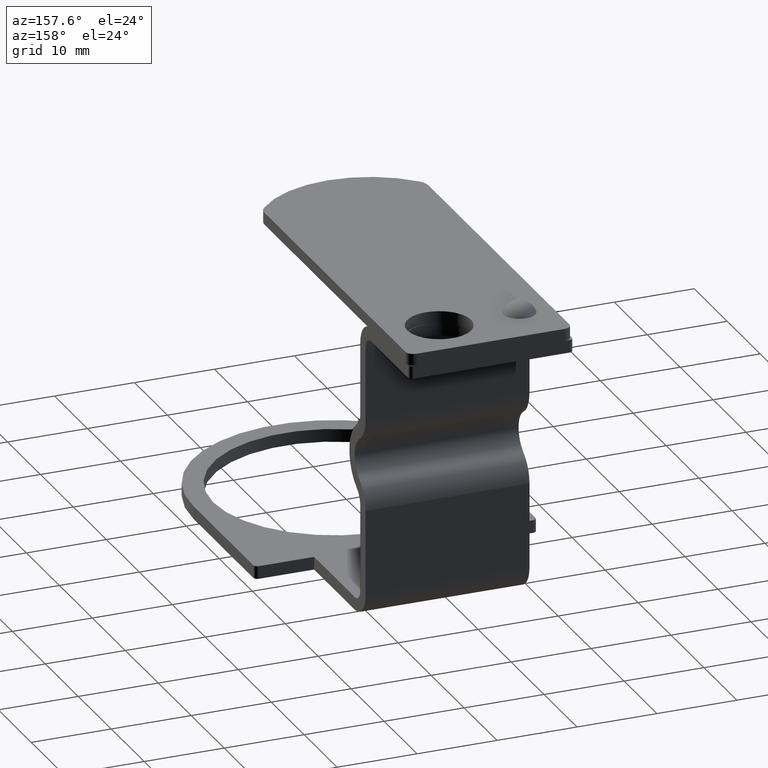
[diagram: clean part render]
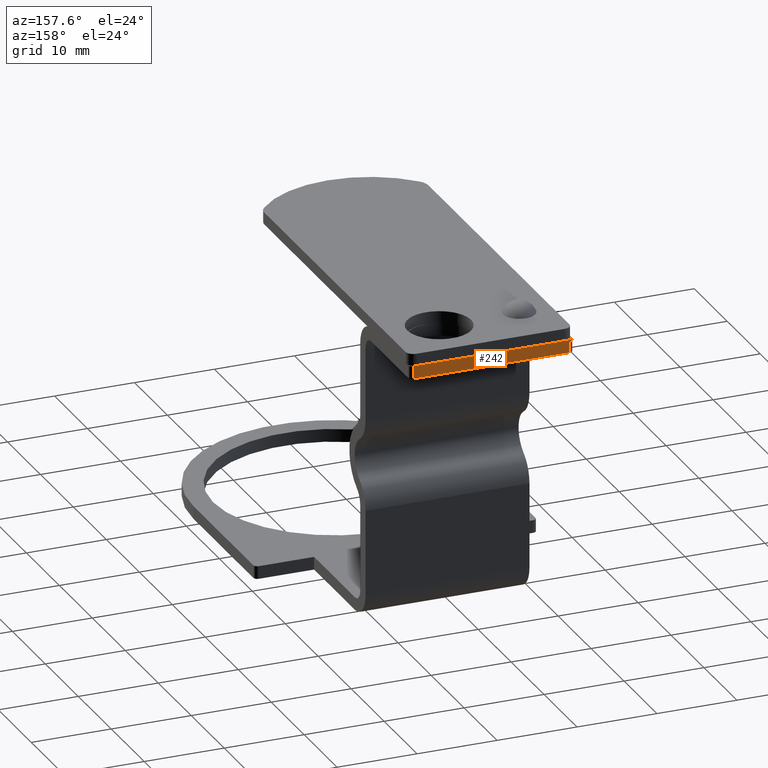
[diagram: same view with one face highlighted and labeled with its STEP entity id]
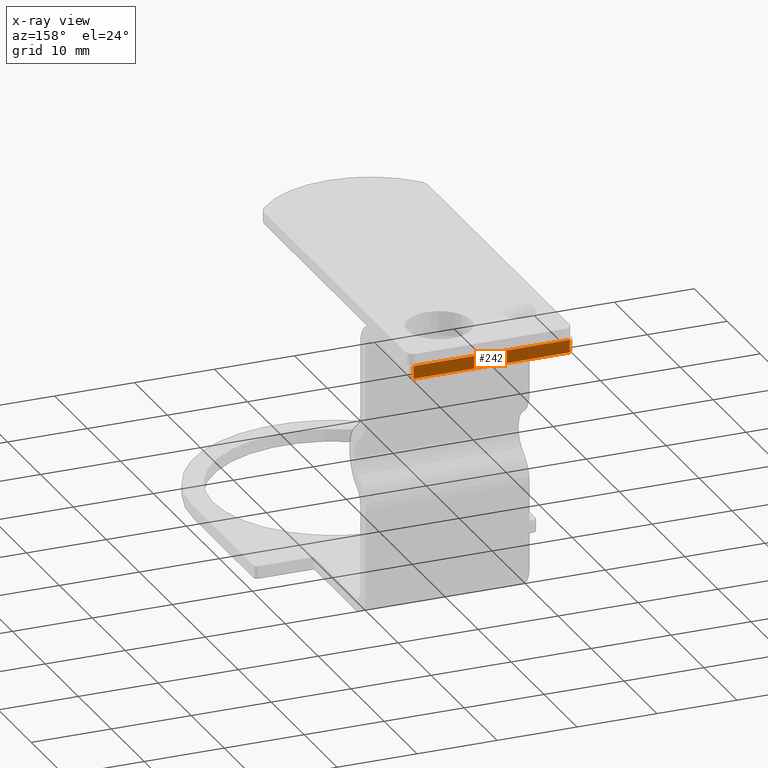
[diagram: x-ray of the same camera — body ghosted, the highlighted face saturated]
A machine part, auxiliary view. The second image highlights one B-rep face of the part: STEP entity #242.
The next image is the same camera in x-ray: the body ghosted, the highlighted face saturated — about 0% of this face is hidden behind the body in this view.
In plain terms, the highlighted planar face has unit normal (0, 1, 0).
Its self-contained STEP definition (entity closure, byte-faithful):
#114=CARTESIAN_POINT('',(11.637544175698897,28.685240578215577,36.0));
#115=VERTEX_POINT('',#114);
#123=CARTESIAN_POINT('',(11.637544175698897,28.685240578215577,37.600000000000001));
#124=VERTEX_POINT('',#123);
#125=CARTESIAN_POINT('',(11.637544175698897,28.685240578215577,36.0));
#126=DIRECTION('',(0.0,0.0,1.0));
#127=VECTOR('',#126,1.600000000000001);
#128=LINE('',#125,#127);
#129=EDGE_CURVE('',#115,#124,#128,.T.);
#155=CARTESIAN_POINT('',(-7.862455824301113,28.685240578215577,37.600000000000001));
#156=VERTEX_POINT('',#155);
#157=CARTESIAN_POINT('',(-7.862455824301113,28.685240578215577,37.600000000000001));
#158=DIRECTION('',(1.0,0.0,0.0));
#159=VECTOR('',#158,19.500000000000011);
#160=LINE('',#157,#159);
#161=EDGE_CURVE('',#156,#124,#160,.T.);
#219=CARTESIAN_POINT('',(-8.362455824301112,28.685240578215577,37.600000000000001));
#220=DIRECTION('',(0.0,1.0,0.0));
#221=DIRECTION('',(0.0,0.0,1.0));
#222=AXIS2_PLACEMENT_3D('',#219,#220,#221);
#223=PLANE('',#222);
#224=ORIENTED_EDGE('',*,*,#129,.F.);
#225=CARTESIAN_POINT('',(-7.862455824301113,28.685240578215577,36.0));
#226=VERTEX_POINT('',#225);
#227=CARTESIAN_POINT('',(-7.862455824301113,28.685240578215577,36.0));
#228=DIRECTION('',(1.0,0.0,0.0));
#229=VECTOR('',#228,19.500000000000011);
#230=LINE('',#227,#229);
#231=EDGE_CURVE('',#226,#115,#230,.T.);
#232=ORIENTED_EDGE('',*,*,#231,.F.);
#233=CARTESIAN_POINT('',(-7.862455824301113,28.685240578215577,37.600000000000001));
#234=DIRECTION('',(0.0,0.0,-1.0));
#235=VECTOR('',#234,1.600000000000001);
#236=LINE('',#233,#235);
#237=EDGE_CURVE('',#156,#226,#236,.T.);
#238=ORIENTED_EDGE('',*,*,#237,.F.);
#239=ORIENTED_EDGE('',*,*,#161,.T.);
#240=EDGE_LOOP('',(#224,#232,#238,#239));
#241=FACE_OUTER_BOUND('',#240,.T.);
#242=ADVANCED_FACE('',(#241),#223,.T.);